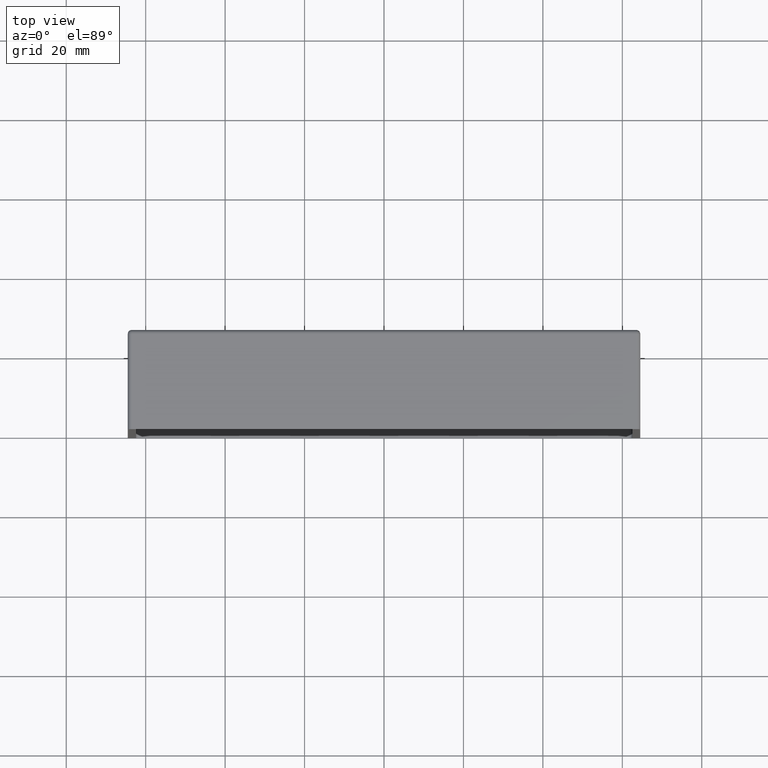
[diagram: clean part render]
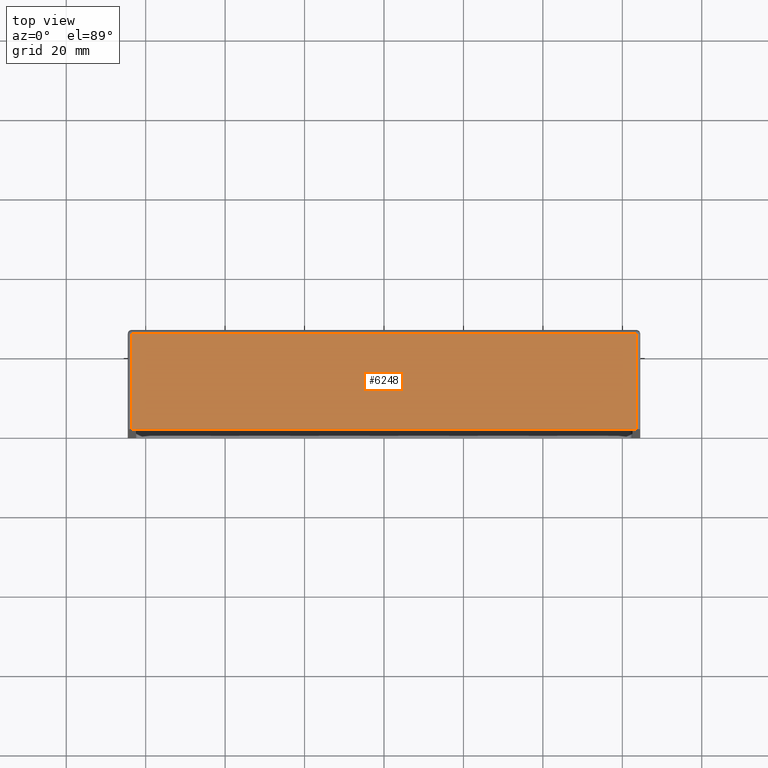
[diagram: same view with one face highlighted and labeled with its STEP entity id]
A machine part, top view. The second image highlights one B-rep face of the part: STEP entity #6248.
In plain terms, the highlighted planar face has unit normal (0, 0, -1).
Its self-contained STEP definition (entity closure, byte-faithful):
#547 = DIRECTION ( 'NONE',  ( -1.000000000000000000, -0.000000000000000000, -0.000000000000000000 ) ) ;
#862 = CARTESIAN_POINT ( 'NONE',  ( -63.49999999999997158, 0.000000000000000000, 64.50000000000000000 ) ) ;
#1304 = VECTOR ( 'NONE', #547, 1000.000000000000000 ) ;
#1317 = VERTEX_POINT ( 'NONE', #3087 ) ;
#1639 = EDGE_CURVE ( 'NONE', #1317, #15448, #12997, .T. ) ;
#2134 = DIRECTION ( 'NONE',  ( 0.000000000000000000, 0.000000000000000000, -1.000000000000000000 ) ) ;
#2439 = VECTOR ( 'NONE', #8836, 1000.000000000000000 ) ;
#2891 = CARTESIAN_POINT ( 'NONE',  ( 63.50000000000000000, 24.00000000000000000, 64.50000000000000000 ) ) ;
#3033 = LINE ( 'NONE', #5322, #1304 ) ;
#3087 = CARTESIAN_POINT ( 'NONE',  ( 63.50000000000000000, 0.000000000000000000, 64.50000000000000000 ) ) ;
#3223 = CARTESIAN_POINT ( 'NONE',  ( -64.49999999999997158, 0.000000000000000000, 64.50000000000000000 ) ) ;
#3841 = CARTESIAN_POINT ( 'NONE',  ( -63.49999999999997158, 24.00000000000000000, 64.50000000000000000 ) ) ;
#5322 = CARTESIAN_POINT ( 'NONE',  ( -64.49999999999997158, 24.00000000000000000, 64.50000000000000000 ) ) ;
#5562 = ORIENTED_EDGE ( 'NONE', *, *, #6941, .T. ) ;
#6248 = ADVANCED_FACE ( 'NONE', ( #14190 ), #13309, .F. ) ;
#6895 = EDGE_CURVE ( 'NONE', #15448, #14258, #3033, .T. ) ;
#6916 = VERTEX_POINT ( 'NONE', #862 ) ;
#6941 = EDGE_CURVE ( 'NONE', #6916, #1317, #7237, .T. ) ;
#7237 = LINE ( 'NONE', #3223, #15869 ) ;
#7279 = AXIS2_PLACEMENT_3D ( 'NONE', #15637, #2134, #14282 ) ;
#8154 = VECTOR ( 'NONE', #15543, 1000.000000000000000 ) ;
#8188 = CARTESIAN_POINT ( 'NONE',  ( 63.50000000000000000, 25.00000000000000000, 64.50000000000000000 ) ) ;
#8278 = ORIENTED_EDGE ( 'NONE', *, *, #9074, .T. ) ;
#8728 = EDGE_LOOP ( 'NONE', ( #10660, #8278, #5562, #9391 ) ) ;
#8836 = DIRECTION ( 'NONE',  ( 0.000000000000000000, -1.000000000000000000, 0.000000000000000000 ) ) ;
#9074 = EDGE_CURVE ( 'NONE', #14258, #6916, #15104, .T. ) ;
#9391 = ORIENTED_EDGE ( 'NONE', *, *, #1639, .T. ) ;
#10577 = DIRECTION ( 'NONE',  ( 1.000000000000000000, 0.000000000000000000, 0.000000000000000000 ) ) ;
#10660 = ORIENTED_EDGE ( 'NONE', *, *, #6895, .T. ) ;
#12997 = LINE ( 'NONE', #8188, #8154 ) ;
#13309 = PLANE ( 'NONE',  #7279 ) ;
#13918 = CARTESIAN_POINT ( 'NONE',  ( -63.49999999999997158, 25.00000000000000000, 64.50000000000000000 ) ) ;
#14190 = FACE_OUTER_BOUND ( 'NONE', #8728, .T. ) ;
#14258 = VERTEX_POINT ( 'NONE', #3841 ) ;
#14282 = DIRECTION ( 'NONE',  ( -1.000000000000000000, 0.000000000000000000, -0.000000000000000000 ) ) ;
#15104 = LINE ( 'NONE', #13918, #2439 ) ;
#15448 = VERTEX_POINT ( 'NONE', #2891 ) ;
#15543 = DIRECTION ( 'NONE',  ( -0.000000000000000000, 1.000000000000000000, -0.000000000000000000 ) ) ;
#15637 = CARTESIAN_POINT ( 'NONE',  ( -64.49999999999997158, 25.00000000000000000, 64.50000000000000000 ) ) ;
#15869 = VECTOR ( 'NONE', #10577, 1000.000000000000000 ) ;